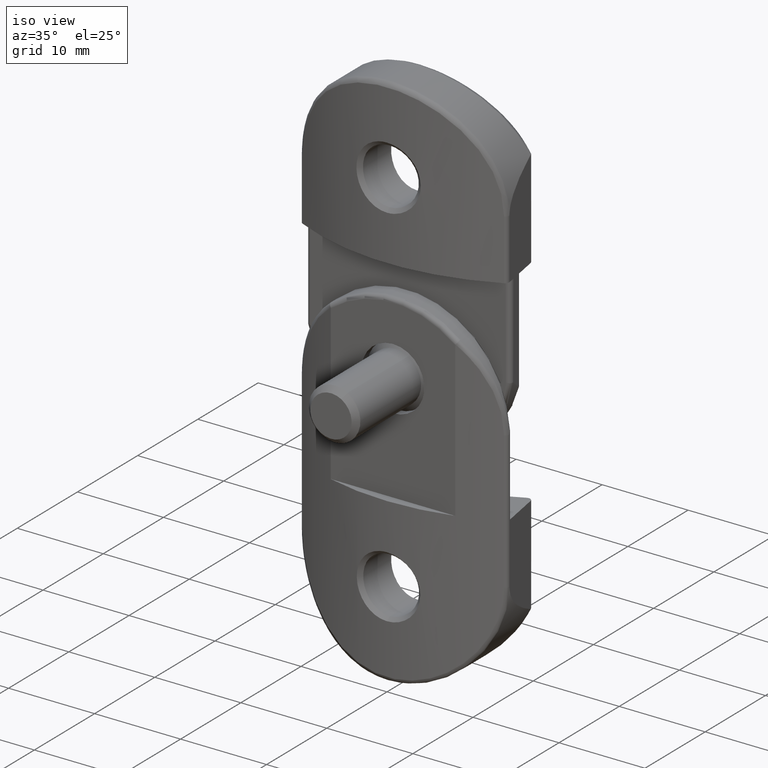
[diagram: clean part render]
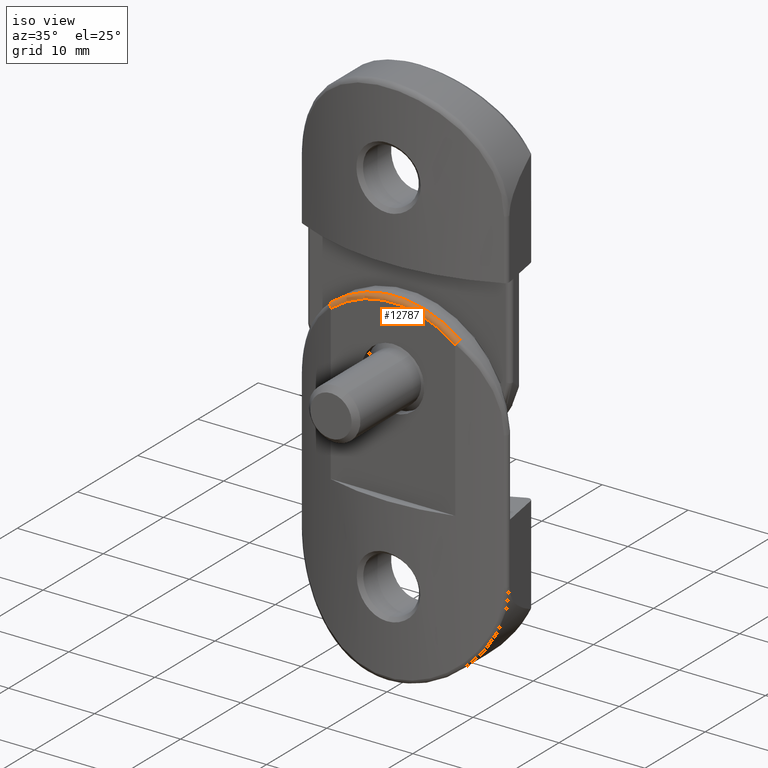
[diagram: same view with one face highlighted and labeled with its STEP entity id]
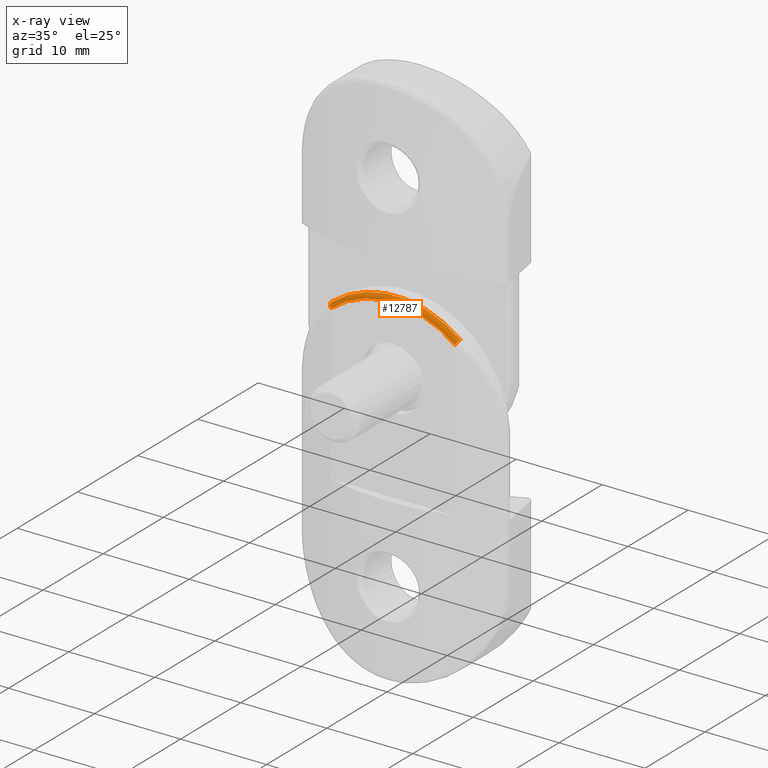
[diagram: x-ray of the same camera — body ghosted, the highlighted face saturated]
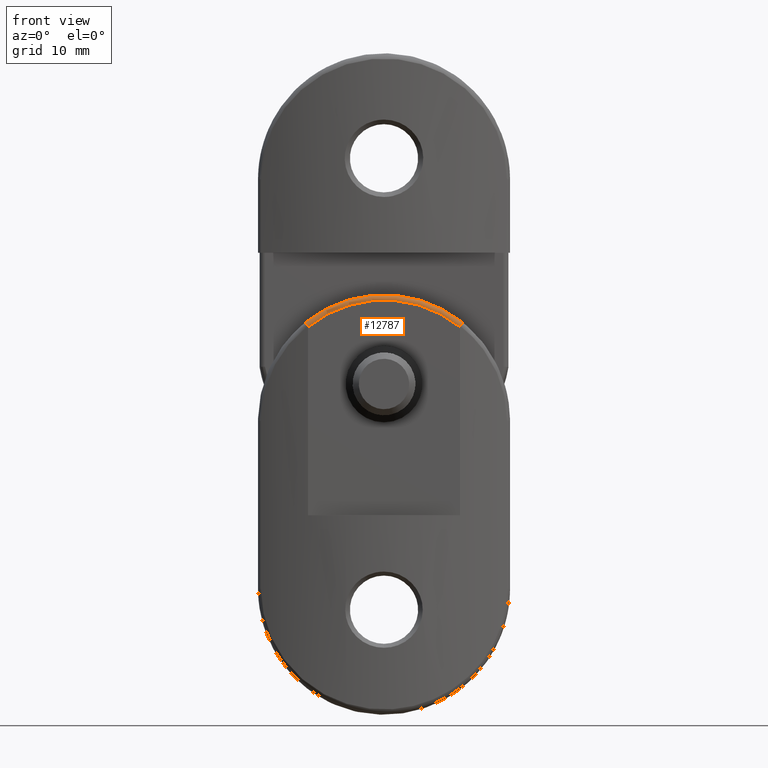
[diagram: same view with one face highlighted and labeled with its STEP entity id]
A machine part, iso view. The second image highlights one B-rep face of the part: STEP entity #12787.
The next image is the same camera in x-ray: the body ghosted, the highlighted face saturated — about 0% of this face is hidden behind the body in this view.
A second angle (front view) of the same face is appended — the face is thin or edge-on in the first view.
In plain terms, the highlighted toroidal blend (fillet) surface has major radius 11.5 mm and minor (blend) radius 0.5 mm.
Its self-contained STEP definition (entity closure, byte-faithful):
#114 = AXIS2_PLACEMENT_3D ( 'NONE', #4589, #6162, #6088 ) ;
#136 = CARTESIAN_POINT ( 'NONE',  ( -7.264462510146701746, 1.007246460554816148, -18.02416604991039151 ) ) ;
#681 = CARTESIAN_POINT ( 'NONE',  ( 7.396367408675480704, 1.088678241660280044, -18.20389631427788046 ) ) ;
#1546 = AXIS2_PLACEMENT_3D ( 'NONE', #11219, #11428, #18027 ) ;
#1829 = CARTESIAN_POINT ( 'NONE',  ( -7.246535683490247237, 1.002184517202552971, -17.98964506296692534 ) ) ;
#1954 = FACE_OUTER_BOUND ( 'NONE', #13482, .T. ) ;
#2072 = CARTESIAN_POINT ( 'NONE',  ( 7.475032641816111045, 1.268385061151961590, -18.33418291797834954 ) ) ;
#2104 = B_SPLINE_CURVE_WITH_KNOTS ( 'NONE', 3,
 ( #136, #15492, #8783, #1829, #20570, #8710, #10456 ),
 .UNSPECIFIED., .F., .F.,
 ( 4, 3, 4 ),
 ( 0.000000000000000000, 3.922617651547401088E-05, 9.370203168190368768E-05 ),
 .UNSPECIFIED. ) ;
#2239 = TOROIDAL_SURFACE ( 'NONE', #1546, 11.50000000000000000, 0.5000000000000000000 ) ;
#2508 = CARTESIAN_POINT ( 'NONE',  ( -7.396372864555013749, 1.088684088635807123, -18.20390418438403657 ) ) ;
#2760 = CARTESIAN_POINT ( 'NONE',  ( -7.481091476425095088, 1.500000000000001110, -18.38260466615533417 ) ) ;
#2946 = CARTESIAN_POINT ( 'NONE',  ( 7.238784428341532795, 0.9999999999999972244, -17.93588272080578605 ) ) ;
#3816 = CARTESIAN_POINT ( 'NONE',  ( 7.491055540924090650, 1.384076993010442846, -18.37465995563542620 ) ) ;
#4008 = CIRCLE ( 'NONE', #114, 12.00000000000000000 ) ;
#4045 = CARTESIAN_POINT ( 'NONE',  ( 7.481091476425087983, 1.500000000000020650, -18.38260466615533772 ) ) ;
#4142 = ORIENTED_EDGE ( 'NONE', *, *, #6443, .F. ) ;
#4201 = VERTEX_POINT ( 'NONE', #13335 ) ;
#4242 = CARTESIAN_POINT ( 'NONE',  ( -7.491025487297324759, 1.384426640126144914, -18.37468391848360483 ) ) ;
#4333 = CARTESIAN_POINT ( 'NONE',  ( 7.481091476425087983, 1.500000000000020650, -18.38260466615533772 ) ) ;
#4519 = CARTESIAN_POINT ( 'NONE',  ( -7.264462510146701746, 1.007246460554816148, -18.02416604991039151 ) ) ;
#4589 = CARTESIAN_POINT ( 'NONE',  ( 4.493304849253142688E-17, 1.500000000000004885, -9.000000000000001776 ) ) ;
#4745 = VERTEX_POINT ( 'NONE', #4333 ) ;
#4754 = CARTESIAN_POINT ( 'NONE',  ( 7.248500299814779169, 1.002738262331303032, -17.99762844097435988 ) ) ;
#5386 = B_SPLINE_CURVE_WITH_KNOTS ( 'NONE', 3,
 ( #9002, #4242, #16138, #2508, #6240, #4519 ),
 .UNSPECIFIED., .F., .F.,
 ( 4, 2, 4 ),
 ( -9.821528510318631967E-06, 0.0003389708877545587369, 0.0006877633040194361261 ),
 .UNSPECIFIED. ) ;
#6088 = DIRECTION ( 'NONE',  ( 1.000000000000000000, -3.614007241618347908E-17, 0.000000000000000000 ) ) ;
#6127 = EDGE_CURVE ( 'NONE', #4745, #19554, #4008, .T. ) ;
#6162 = DIRECTION ( 'NONE',  ( 2.995536566168761586E-17, 1.000000000000000000, 0.000000000000000000 ) ) ;
#6240 = CARTESIAN_POINT ( 'NONE',  ( -7.335422562632365917, 1.027309963682603522, -18.11667873964505660 ) ) ;
#6443 = EDGE_CURVE ( 'NONE', #11447, #10203, #2104, .T. ) ;
#6542 = CARTESIAN_POINT ( 'NONE',  ( 7.240386564061214614, 1.000450966444919043, -17.96759965670722536 ) ) ;
#6610 = CARTESIAN_POINT ( 'NONE',  ( 7.244484219213560117, 1.001606112490889489, -17.98276500178477733 ) ) ;
#6901 = ORIENTED_EDGE ( 'NONE', *, *, #9196, .F. ) ;
#7160 = AXIS2_PLACEMENT_3D ( 'NONE', #18826, #20446, #15437 ) ;
#7722 = ORIENTED_EDGE ( 'NONE', *, *, #18485, .F. ) ;
#8710 = CARTESIAN_POINT ( 'NONE',  ( -7.238784428341547006, 1.000000000000000000, -17.95400343794415576 ) ) ;
#8783 = CARTESIAN_POINT ( 'NONE',  ( -7.250586650455434601, 1.003326850747811916, -18.00202450645867103 ) ) ;
#9002 = CARTESIAN_POINT ( 'NONE',  ( -7.481091476425095088, 1.500000000000001110, -18.38260466615533417 ) ) ;
#9196 = EDGE_CURVE ( 'NONE', #4201, #20461, #17695, .T. ) ;
#9386 = CARTESIAN_POINT ( 'NONE',  ( 7.264462510146699969, 1.007246460554813927, -18.02416604991039506 ) ) ;
#9532 = ORIENTED_EDGE ( 'NONE', *, *, #6127, .F. ) ;
#10203 = VERTEX_POINT ( 'NONE', #21343 ) ;
#10319 = EDGE_CURVE ( 'NONE', #10203, #4201, #11399, .T. ) ;
#10456 = CARTESIAN_POINT ( 'NONE',  ( -7.238784428341531019, 0.9999999999999972244, -17.93588272080604540 ) ) ;
#10825 = CARTESIAN_POINT ( 'NONE',  ( -7.264462510146701746, 1.007246460554816148, -18.02416604991039151 ) ) ;
#10840 = CARTESIAN_POINT ( 'NONE',  ( 7.264462510146699969, 1.007246460554813927, -18.02416604991039506 ) ) ;
#11208 = ORIENTED_EDGE ( 'NONE', *, *, #18013, .F. ) ;
#11219 = CARTESIAN_POINT ( 'NONE',  ( 4.493304849253132827E-17, 1.500000000000001332, -9.000000000000001776 ) ) ;
#11399 = CIRCLE ( 'NONE', #7160, 11.50000000000000000 ) ;
#11428 = DIRECTION ( 'NONE',  ( -2.995536566168761586E-17, -1.000000000000000000, -0.000000000000000000 ) ) ;
#11447 = VERTEX_POINT ( 'NONE', #10825 ) ;
#11451 = CARTESIAN_POINT ( 'NONE',  ( 7.238784428341857868, 0.9999999999999967804, -17.95163431854875924 ) ) ;
#12787 = ADVANCED_FACE ( 'NONE', ( #1954 ), #2239, .T. ) ;
#13335 = CARTESIAN_POINT ( 'NONE',  ( 7.238784428341532795, 0.9999999999999972244, -17.93588272080578605 ) ) ;
#13482 = EDGE_LOOP ( 'NONE', ( #7722, #9532, #11208, #6901, #21949, #4142 ) ) ;
#13808 = B_SPLINE_CURVE_WITH_KNOTS ( 'NONE', 3,
 ( #10840, #17628, #681, #2072, #3816, #4045 ),
 .UNSPECIFIED., .F., .F.,
 ( 4, 2, 4 ),
 ( 9.697399036122160616E-19, 0.0003498476271075069005, 0.0006996952542150128252 ),
 .UNSPECIFIED. ) ;
#15437 = DIRECTION ( 'NONE',  ( 1.000000000000000000, -3.771137991253928573E-17, 0.000000000000000000 ) ) ;
#15492 = CARTESIAN_POINT ( 'NONE',  ( -7.256619922557082880, 1.005029018837642507, -18.01394143976735762 ) ) ;
#16138 = CARTESIAN_POINT ( 'NONE',  ( -7.475037350601528630, 1.268402435703916309, -18.33419188290182689 ) ) ;
#16575 = CARTESIAN_POINT ( 'NONE',  ( 7.264462510146699969, 1.007246460554813927, -18.02416604991039506 ) ) ;
#17628 = CARTESIAN_POINT ( 'NONE',  ( 7.335419506334924122, 1.027309099533958880, -18.11667475506095926 ) ) ;
#17695 = B_SPLINE_CURVE_WITH_KNOTS ( 'NONE', 3,
 ( #2946, #11451, #6542, #6610, #4754, #18272, #16575 ),
 .UNSPECIFIED., .F., .F.,
 ( 4, 3, 4 ),
 ( 3.843156439596477817E-17, 4.725479322891844785E-05, 9.391159158657096573E-05 ),
 .UNSPECIFIED. ) ;
#18013 = EDGE_CURVE ( 'NONE', #20461, #4745, #13808, .T. ) ;
#18027 = DIRECTION ( 'NONE',  ( 1.000000000000000000, -2.995536566168761586E-17, 0.000000000000000000 ) ) ;
#18272 = CARTESIAN_POINT ( 'NONE',  ( 7.255202823706113691, 1.004628343158403991, -18.01209392667048093 ) ) ;
#18485 = EDGE_CURVE ( 'NONE', #19554, #11447, #5386, .T. ) ;
#18826 = CARTESIAN_POINT ( 'NONE',  ( 2.995536566168739400E-17, 0.9999999999999970024, -9.000000000000001776 ) ) ;
#19554 = VERTEX_POINT ( 'NONE', #2760 ) ;
#20446 = DIRECTION ( 'NONE',  ( -2.995536566168761586E-17, -1.000000000000000000, -0.000000000000000000 ) ) ;
#20461 = VERTEX_POINT ( 'NONE', #9386 ) ;
#20570 = CARTESIAN_POINT ( 'NONE',  ( -7.240921593637517084, 1.000601398105314344, -17.97248883614831172 ) ) ;
#21343 = CARTESIAN_POINT ( 'NONE',  ( -7.238784428341531019, 0.9999999999999972244, -17.93588272080604540 ) ) ;
#21949 = ORIENTED_EDGE ( 'NONE', *, *, #10319, .F. ) ;